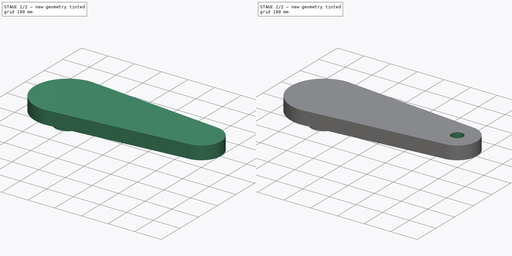
[diagram: build sequence overview — one tinted view per stage of 2, left to right]
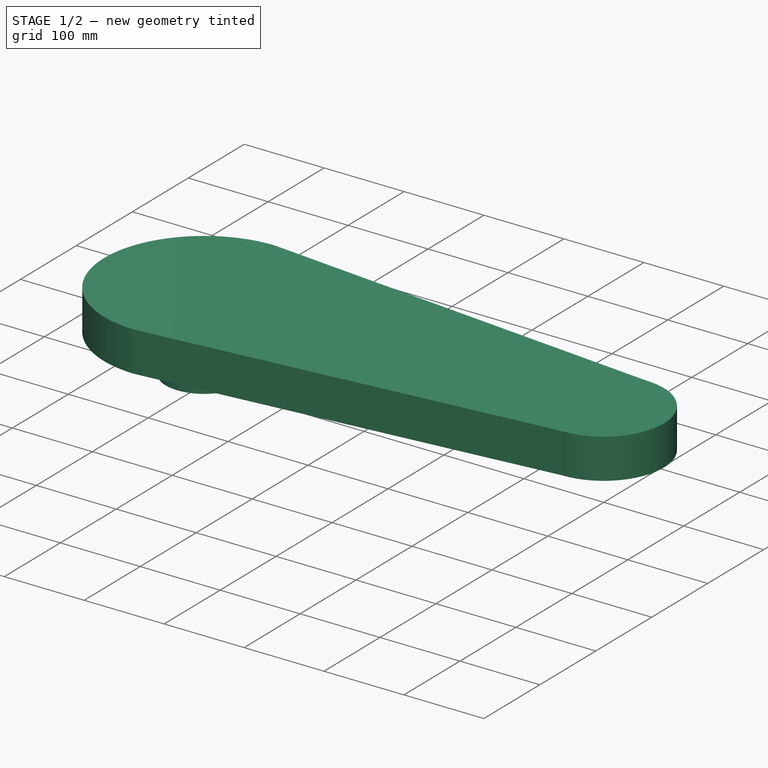
[diagram: stage 1 of 2 — iso view after this stage's code; geometry added in this stage tinted green]
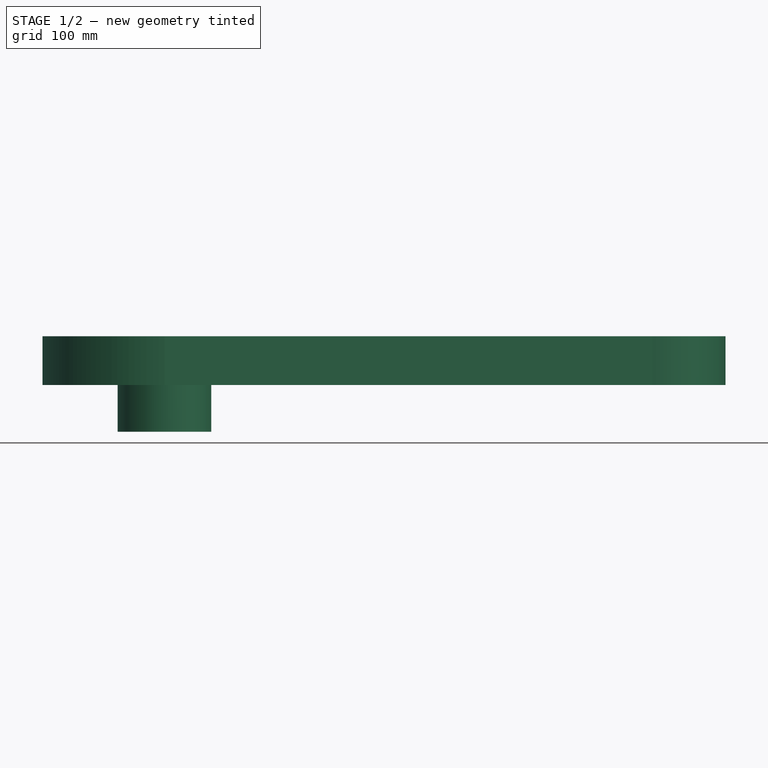
[diagram: stage 1 of 2 — front view after this stage's code; geometry added in this stage tinted green]
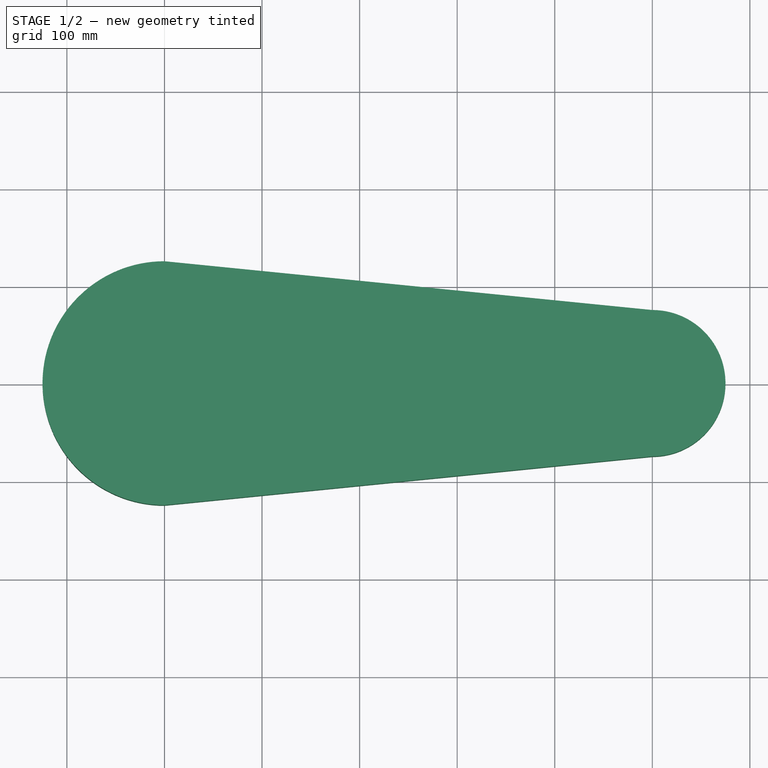
[diagram: stage 1 of 2 — top view after this stage's code; geometry added in this stage tinted green]
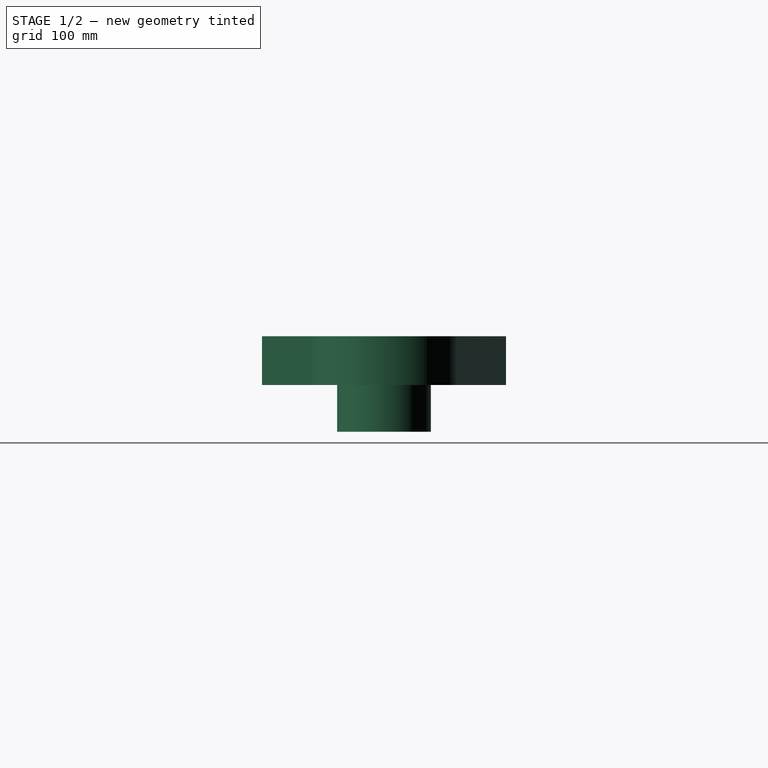
[diagram: stage 1 of 2 — right view after this stage's code; geometry added in this stage tinted green]
FCSTD DOCUMENT  (FreeCAD 0.18.4R)
Label: link_2 
License: All rights reserved
LicenseURL: http://en.wikipedia.org/wiki/All_rights_reserved
objects: Sketcher::SketchObject×3, PartDesign::Pad×2, PartDesign::Pocket×1, PartDesign::Body×1
note: 10 computed .brp shape members not serialized (recipe doc carries the construction recipe); baked Part::Feature solids carry a one-line shape summary decoded from their .brp

FEATURE [Sketcher::SketchObject] Sketch
  MapMode = 5
  Support = -> [XY_Plane]
  sketch-geometry (4):
    g0: ArcOfCircle CenterX=0 CenterY=0 CenterZ=0 NormalX=0 NormalY=0 NormalZ=1 AngleXU=0 Radius=125 StartAngle=1.5708 EndAngle=4.71239
    g1: ArcOfCircle CenterX=500 CenterY=0 CenterZ=0 NormalX=0 NormalY=0 NormalZ=1 AngleXU=0 Radius=75 StartAngle=4.71239 EndAngle=7.85398
    g2: LineSegment StartX=7.7e-15 StartY=125 StartZ=0 EndX=500 EndY=75 EndZ=0
    g3: LineSegment StartX=-2.3e-14 StartY=-125 StartZ=0 EndX=500 EndY=-75 EndZ=0
  constraints (13):
    c: Coincident(g0,g-1)
    c: DistanceX(g0,g0) = 0
    c: DistanceX(g0,g0) = 0
    c: DistanceY(g0,g0) = 250
    c: DistanceX(g0,g1) = 500
    c: DistanceY(g0,g1) = 0
    c: DistanceX(g0,g1) = 500
    c: DistanceX(g0,g1) = 500
    c: DistanceY(g1,g1) = 75
    c: Coincident(g2,g1)
    c: Coincident(g0,g2)
    c: Coincident(g3,g1)
    c: Coincident(g0,g3)
FEATURE [PartDesign::Pad] Pad
  Length = 50
  Length2 = 100
  Midplane = true
  Profile = -> Sketch
  Type = 0
FEATURE [Sketcher::SketchObject] Sketch001
  MapMode = 5
  Placement = pos=(0,0,-25) rot=(1,0,0;3.14159rad)
  Support = -> [Pad]
  sketch-geometry (1):
    g0: Circle CenterX=0 CenterY=0 CenterZ=0 NormalX=0 NormalY=0 NormalZ=1 AngleXU=0 Radius=48
  constraints (2):
    c: Coincident(g0,g-1)
    c: Radius(g0) = 48
FEATURE [PartDesign::Pad] Pad001
  BaseFeature = -> Pad
  Length = 48
  Length2 = 100
  Profile = -> Sketch001
  Type = 0
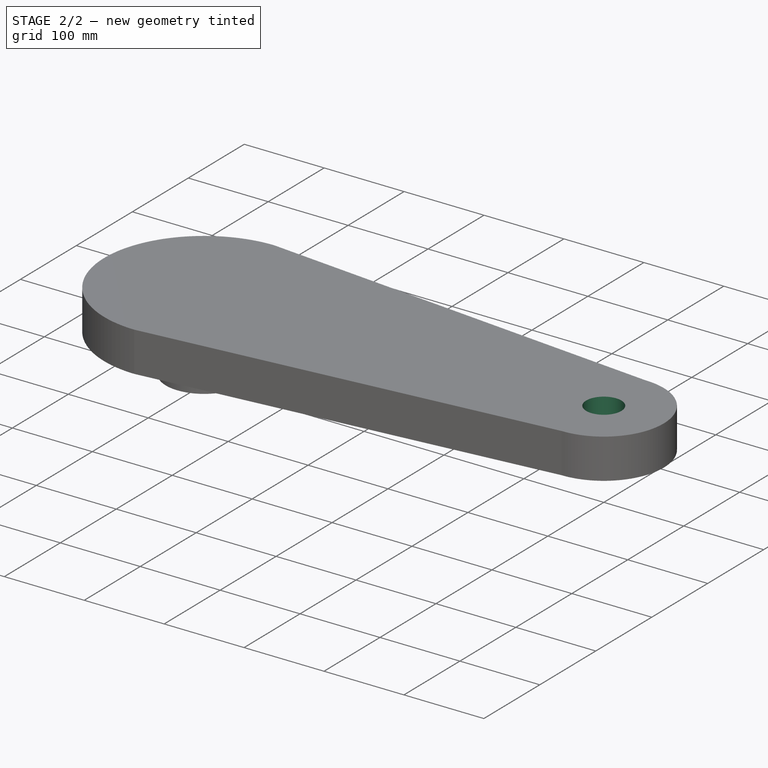
[diagram: stage 2 of 2 — iso view after this stage's code; geometry added in this stage tinted green]
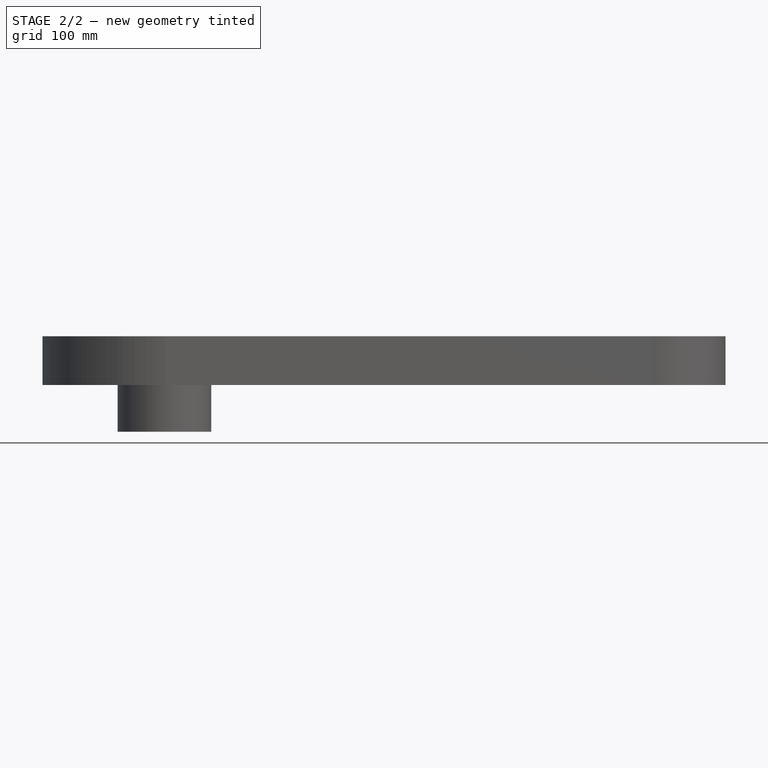
[diagram: stage 2 of 2 — front view after this stage's code; geometry added in this stage tinted green]
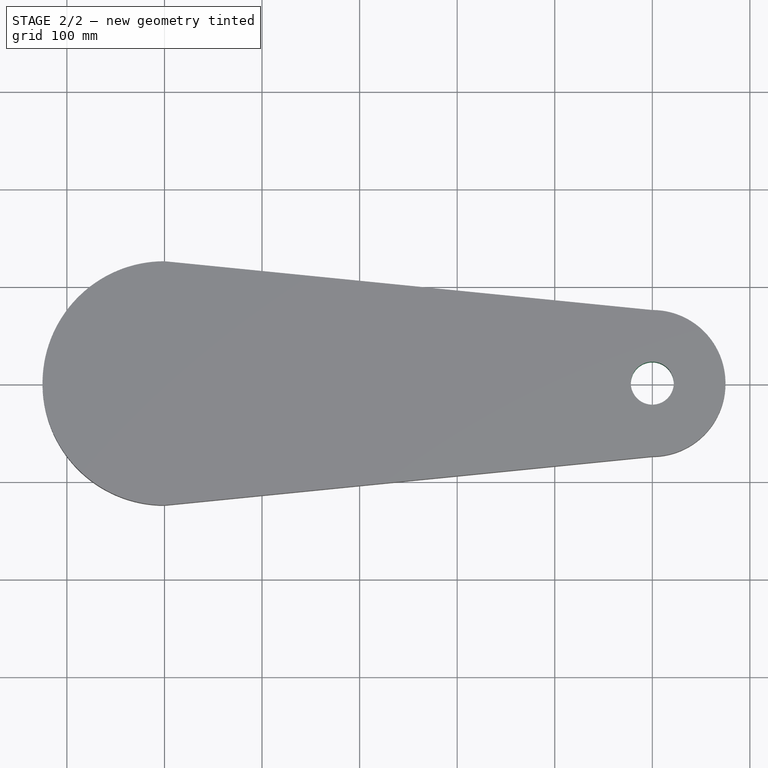
[diagram: stage 2 of 2 — top view after this stage's code; geometry added in this stage tinted green]
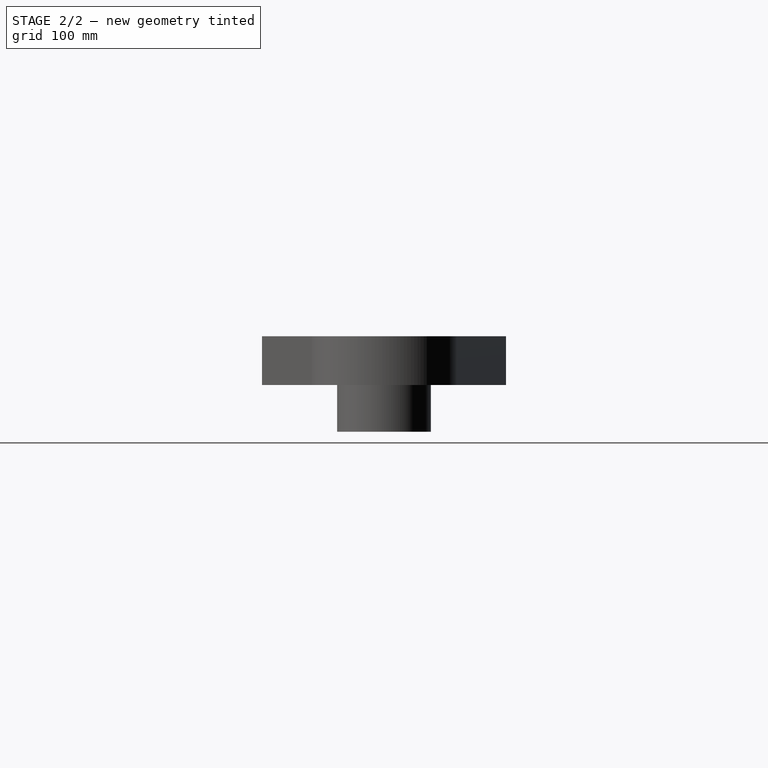
[diagram: stage 2 of 2 — right view after this stage's code; geometry added in this stage tinted green]
FEATURE [Sketcher::SketchObject] Sketch002
  MapMode = 5
  Placement = pos=(0,0,25) rot=(0,0,1;0rad)
  Support = -> [Pad001]
  sketch-geometry (1):
    g0: Circle CenterX=500 CenterY=0 CenterZ=0 NormalX=0 NormalY=0 NormalZ=1 AngleXU=0 Radius=22
  constraints (3):
    c: DistanceX(g-1,g0) = 500
    c: DistanceY(g-1,g0) = 0
    c: Radius(g0) = 22
FEATURE [PartDesign::Pocket] Pocket
  BaseFeature = -> Pad001
  Length = 51
  Length2 = 100
  Profile = -> Sketch002
  Type = 0
FEATURE [PartDesign::Body] Body
  Group = -> [Sketch,Pad,Sketch001,Pad001,Sketch002,Pocket]
  Origin = -> Origin
  Tip = -> Pocket
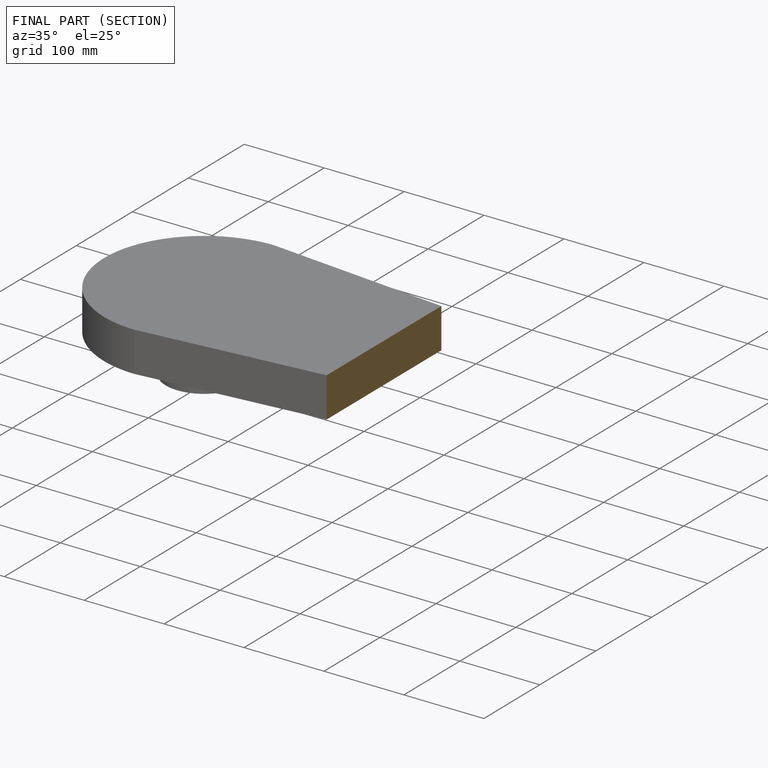
[diagram: finished part — half-section view (interior)]
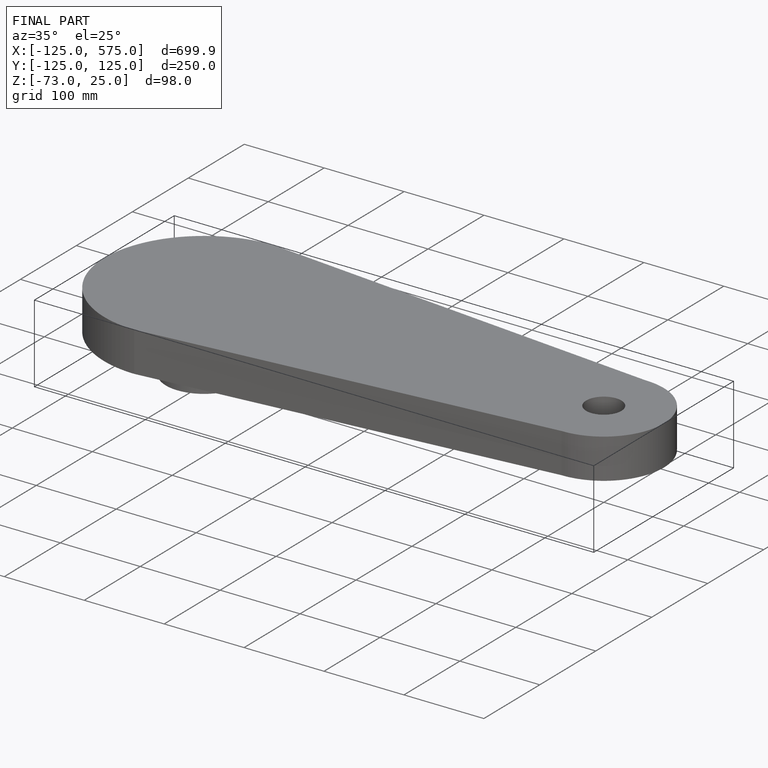
[diagram: finished part — iso view with bounding-box wireframe]
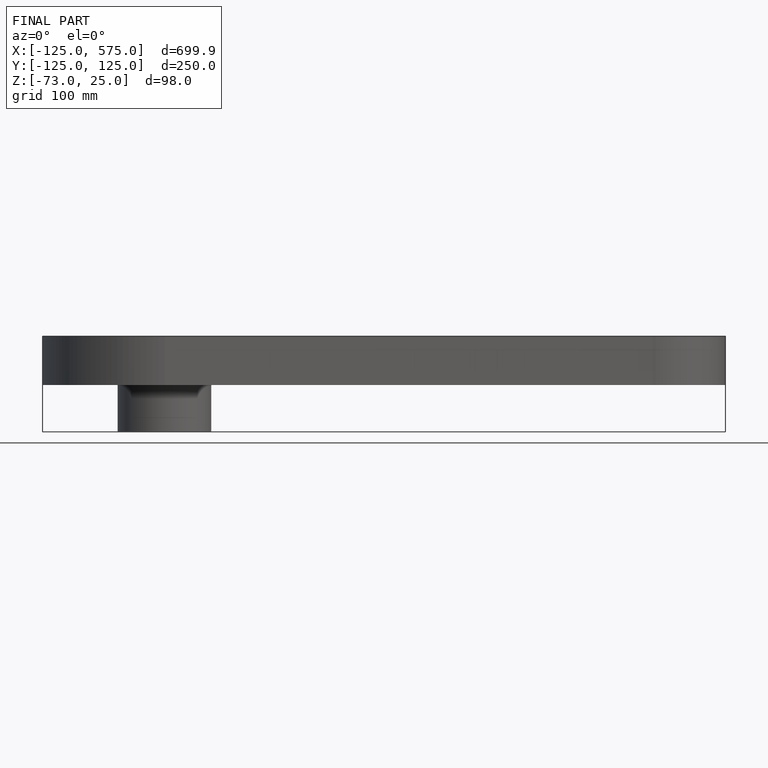
[diagram: finished part — front view with bounding-box wireframe]
